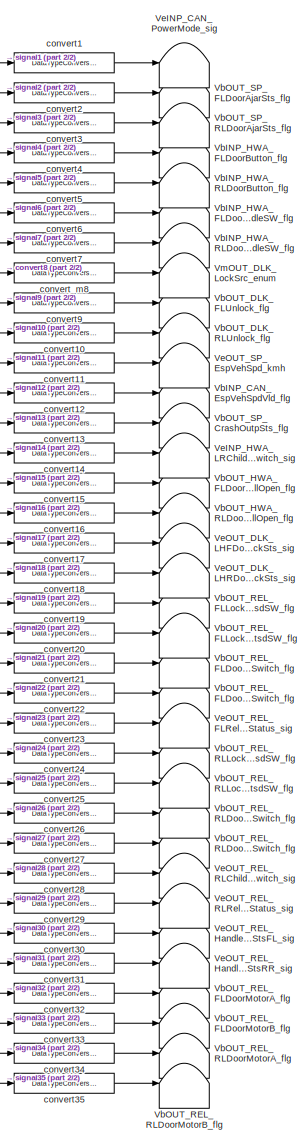
[diagram: root canvas - part 1/2, right side, full height]
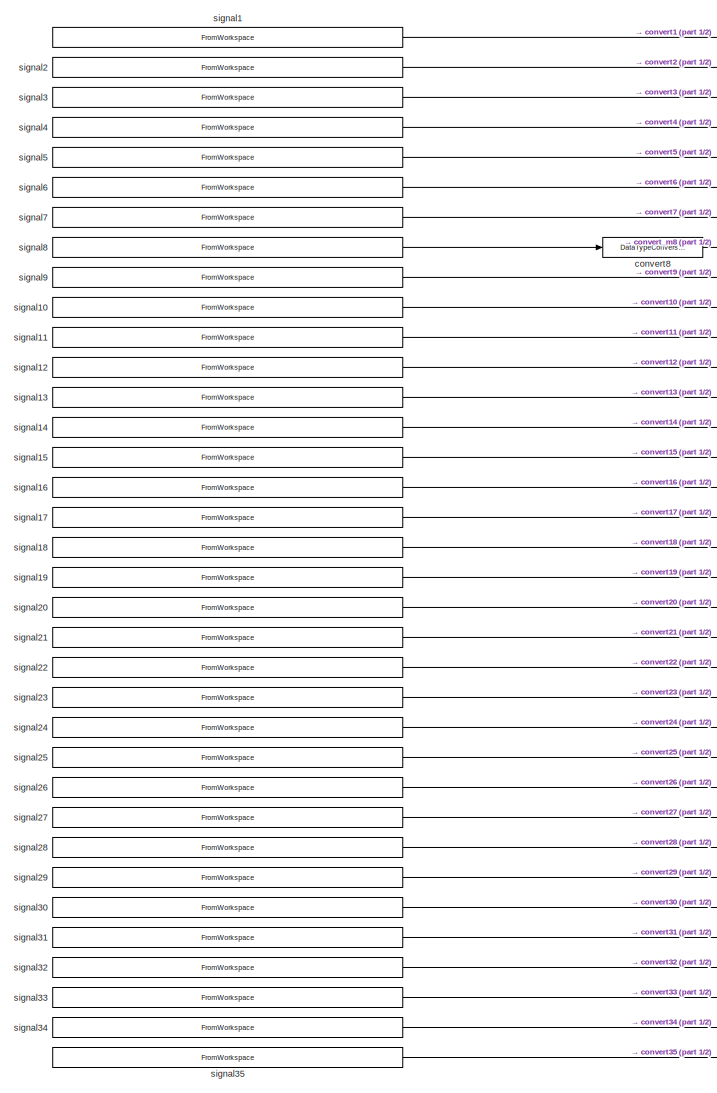
[diagram: root canvas - part 2/2, left side, full height]
MODEL slx_5ed63bcb32f9
KIND model
CONFIG AbsTol = auto
CONFIG EnableMultiTasking = off
CONFIG FixedStep = 0.01
CONFIG MaxStep = auto
CONFIG MinStep = auto
CONFIG RelTol = 1e-3
CONFIG SampleTimeConstraint = Unconstrained
CONFIG SolverName = FixedStepDiscrete
CONFIG StartTime = 0.0
CONFIG StopTime = 10.0
BLOCK [Terminator] VbINP_CAN_EspVehSpdVld_flg
BLOCK [Terminator] VbINP_HWA_FLDoorButton_flg
BLOCK [Terminator] VbINP_HWA_FLDoorHandleSW_flg
BLOCK [Terminator] VbINP_HWA_RLDoorButton_flg
BLOCK [Terminator] VbINP_HWA_RLDoorHandleSW_flg
BLOCK [Terminator] VbOUT_DLK_FLUnlock_flg
BLOCK [Terminator] VbOUT_DLK_RLUnlock_flg
BLOCK [Terminator] VbOUT_HWA_FLDoorFullOpen_flg
BLOCK [Terminator] VbOUT_HWA_RLDoorFullOpen_flg
BLOCK [Terminator] VbOUT_REL_FLDoorAjarSwitch_flg
BLOCK [Terminator] VbOUT_REL_FLDoorMotorA_flg
BLOCK [Terminator] VbOUT_REL_FLDoorMotorB_flg
BLOCK [Terminator] VbOUT_REL_FLDoorOpenSwitch_flg
BLOCK [Terminator] VbOUT_REL_FLLockReleaseInsdSW_flg
BLOCK [Terminator] VbOUT_REL_FLLockReleaseOutsdSW_flg
BLOCK [Terminator] VbOUT_REL_RLDoorAjarSwitch_flg
BLOCK [Terminator] VbOUT_REL_RLDoorMotorA_flg
BLOCK [Terminator] VbOUT_REL_RLDoorMotorB_flg
BLOCK [Terminator] VbOUT_REL_RLDoorOpenSwitch_flg
BLOCK [Terminator] VbOUT_REL_RLLockReleaseInsdSW_flg
BLOCK [Terminator] VbOUT_REL_RLLockReleaseOutsdSW_flg
BLOCK [Terminator] VbOUT_SP_CrashOutpSts_flg
BLOCK [Terminator] VbOUT_SP_FLDoorAjarSts_flg
BLOCK [Terminator] VbOUT_SP_RLDoorAjarSts_flg
BLOCK [Terminator] VeINP_CAN_PowerMode_sig
BLOCK [Terminator] VeINP_HWA_LRChildrenProtectSwitch_sig
BLOCK [Terminator] VeOUT_DLK_LHFDoorLockSts_sig
BLOCK [Terminator] VeOUT_DLK_LHRDoorLockSts_sig
BLOCK [Terminator] VeOUT_REL_FLReleaseLatchStatus_sig
BLOCK [Terminator] VeOUT_REL_HandleSwitchStsFL_sig
BLOCK [Terminator] VeOUT_REL_HandleSwitchStsRR_sig
BLOCK [Terminator] VeOUT_REL_RLChildrenProtectSwitch_sig
BLOCK [Terminator] VeOUT_REL_RLReleaseLatchStatus_sig
BLOCK [Terminator] VeOUT_SP_EspVehSpd_kmh
BLOCK [Terminator] VmOUT_DLK_LockSrc_enum
BLOCK [DataTypeConversion] convert1
  OutDataTypeStr = uint8
  RndMeth = Floor
  SaturateOnIntegerOverflow = off
BLOCK [DataTypeConversion] convert10
  OutDataTypeStr = boolean
  RndMeth = Floor
  SaturateOnIntegerOverflow = off
BLOCK [DataTypeConversion] convert11
  OutDataTypeStr = uint8
  RndMeth = Floor
  SaturateOnIntegerOverflow = off
BLOCK [DataTypeConversion] convert12
  OutDataTypeStr = boolean
  RndMeth = Floor
  SaturateOnIntegerOverflow = off
BLOCK [DataTypeConversion] convert13
  OutDataTypeStr = boolean
  RndMeth = Floor
  SaturateOnIntegerOverflow = off
BLOCK [DataTypeConversion] convert14
  OutDataTypeStr = uint8
  RndMeth = Floor
  SaturateOnIntegerOverflow = off
BLOCK [DataTypeConversion] convert15
  OutDataTypeStr = boolean
  RndMeth = Floor
  SaturateOnIntegerOverflow = off
BLOCK [DataTypeConversion] convert16
  OutDataTypeStr = boolean
  RndMeth = Floor
  SaturateOnIntegerOverflow = off
BLOCK [DataTypeConversion] convert17
  OutDataTypeStr = uint8
  RndMeth = Floor
  SaturateOnIntegerOverflow = off
BLOCK [DataTypeConversion] convert18
  OutDataTypeStr = uint8
  RndMeth = Floor
  SaturateOnIntegerOverflow = off
BLOCK [DataTypeConversion] convert19
  OutDataTypeStr = boolean
  RndMeth = Floor
  SaturateOnIntegerOverflow = off
BLOCK [DataTypeConversion] convert2
  OutDataTypeStr = boolean
  RndMeth = Floor
  SaturateOnIntegerOverflow = off
BLOCK [DataTypeConversion] convert20
  OutDataTypeStr = boolean
  RndMeth = Floor
  SaturateOnIntegerOverflow = off
BLOCK [DataTypeConversion] convert21
  OutDataTypeStr = boolean
  RndMeth = Floor
  SaturateOnIntegerOverflow = off
BLOCK [DataTypeConversion] convert22
  OutDataTypeStr = boolean
  RndMeth = Floor
  SaturateOnIntegerOverflow = off
BLOCK [DataTypeConversion] convert23
  OutDataTypeStr = uint8
  RndMeth = Floor
  SaturateOnIntegerOverflow = off
BLOCK [DataTypeConversion] convert24
  OutDataTypeStr = boolean
  RndMeth = Floor
  SaturateOnIntegerOverflow = off
BLOCK [DataTypeConversion] convert25
  OutDataTypeStr = boolean
  RndMeth = Floor
  SaturateOnIntegerOverflow = off
BLOCK [DataTypeConversion] convert26
  OutDataTypeStr = boolean
  RndMeth = Floor
  SaturateOnIntegerOverflow = off
BLOCK [DataTypeConversion] convert27
  OutDataTypeStr = boolean
  RndMeth = Floor
  SaturateOnIntegerOverflow = off
BLOCK [DataTypeConversion] convert28
  OutDataTypeStr = uint8
  RndMeth = Floor
  SaturateOnIntegerOverflow = off
BLOCK [DataTypeConversion] convert29
  OutDataTypeStr = uint8
  RndMeth = Floor
  SaturateOnIntegerOverflow = off
BLOCK [DataTypeConversion] convert3
  OutDataTypeStr = boolean
  RndMeth = Floor
  SaturateOnIntegerOverflow = off
BLOCK [DataTypeConversion] convert30
  OutDataTypeStr = uint8
  RndMeth = Floor
  SaturateOnIntegerOverflow = off
BLOCK [DataTypeConversion] convert31
  OutDataTypeStr = uint8
  RndMeth = Floor
  SaturateOnIntegerOverflow = off
BLOCK [DataTypeConversion] convert32
  OutDataTypeStr = boolean
  RndMeth = Floor
  SaturateOnIntegerOverflow = off
BLOCK [DataTypeConversion] convert33
  OutDataTypeStr = boolean
  RndMeth = Floor
  SaturateOnIntegerOverflow = off
BLOCK [DataTypeConversion] convert34
  OutDataTypeStr = boolean
  RndMeth = Floor
  SaturateOnIntegerOverflow = off
BLOCK [DataTypeConversion] convert35
  OutDataTypeStr = boolean
  RndMeth = Floor
  SaturateOnIntegerOverflow = off
BLOCK [DataTypeConversion] convert4
  OutDataTypeStr = boolean
  RndMeth = Floor
  SaturateOnIntegerOverflow = off
BLOCK [DataTypeConversion] convert5
  OutDataTypeStr = boolean
  RndMeth = Floor
  SaturateOnIntegerOverflow = off
BLOCK [DataTypeConversion] convert6
  OutDataTypeStr = boolean
  RndMeth = Floor
  SaturateOnIntegerOverflow = off
BLOCK [DataTypeConversion] convert7
  OutDataTypeStr = boolean
  RndMeth = Floor
  SaturateOnIntegerOverflow = off
BLOCK [DataTypeConversion] convert8
  OutDataTypeStr = uint8
  RndMeth = Floor
  SaturateOnIntegerOverflow = off
BLOCK [DataTypeConversion] convert9
  OutDataTypeStr = boolean
  RndMeth = Floor
  SaturateOnIntegerOverflow = off
BLOCK [DataTypeConversion] convert_m8
  RndMeth = Floor
  SaturateOnIntegerOverflow = off
BLOCK [FromWorkspace] signal1
  Interpolate = off
  OutputAfterFinalValue = Holding final value
  SampleTime = -1
  VariableName = VeINP_CAN_PowerMode_sig
BLOCK [FromWorkspace] signal10
  Interpolate = off
  OutputAfterFinalValue = Holding final value
  SampleTime = -1
  VariableName = VbOUT_DLK_RLUnlock_flg
BLOCK [FromWorkspace] signal11
  Interpolate = off
  OutputAfterFinalValue = Holding final value
  SampleTime = -1
  VariableName = VeOUT_SP_EspVehSpd_kmh
BLOCK [FromWorkspace] signal12
  Interpolate = off
  OutputAfterFinalValue = Holding final value
  SampleTime = -1
  VariableName = VbINP_CAN_EspVehSpdVld_flg
BLOCK [FromWorkspace] signal13
  Interpolate = off
  OutputAfterFinalValue = Holding final value
  SampleTime = -1
  VariableName = VbOUT_SP_CrashOutpSts_flg
BLOCK [FromWorkspace] signal14
  Interpolate = off
  OutputAfterFinalValue = Holding final value
  SampleTime = -1
  VariableName = VeINP_HWA_LRChildrenProtectSwitch_sig
BLOCK [FromWorkspace] signal15
  Interpolate = off
  OutputAfterFinalValue = Holding final value
  SampleTime = -1
  VariableName = VbOUT_HWA_FLDoorFullOpen_flg
BLOCK [FromWorkspace] signal16
  Interpolate = off
  OutputAfterFinalValue = Holding final value
  SampleTime = -1
  VariableName = VbOUT_HWA_RLDoorFullOpen_flg
BLOCK [FromWorkspace] signal17
  Interpolate = off
  OutputAfterFinalValue = Holding final value
  SampleTime = -1
  VariableName = VeOUT_DLK_LHFDoorLockSts_sig
BLOCK [FromWorkspace] signal18
  Interpolate = off
  OutputAfterFinalValue = Holding final value
  SampleTime = -1
  VariableName = VeOUT_DLK_LHRDoorLockSts_sig
BLOCK [FromWorkspace] signal19
  Interpolate = off
  OutputAfterFinalValue = Holding final value
  SampleTime = -1
  VariableName = VbOUT_REL_FLLockReleaseInsdSW_flg
BLOCK [FromWorkspace] signal2
  Interpolate = off
  OutputAfterFinalValue = Holding final value
  SampleTime = -1
  VariableName = VbOUT_SP_FLDoorAjarSts_flg
BLOCK [FromWorkspace] signal20
  Interpolate = off
  OutputAfterFinalValue = Holding final value
  SampleTime = -1
  VariableName = VbOUT_REL_FLLockReleaseOutsdSW_flg
BLOCK [FromWorkspace] signal21
  Interpolate = off
  OutputAfterFinalValue = Holding final value
  SampleTime = -1
  VariableName = VbOUT_REL_FLDoorOpenSwitch_flg
BLOCK [FromWorkspace] signal22
  Interpolate = off
  OutputAfterFinalValue = Holding final value
  SampleTime = -1
  VariableName = VbOUT_REL_FLDoorAjarSwitch_flg
BLOCK [FromWorkspace] signal23
  Interpolate = off
  OutputAfterFinalValue = Holding final value
  SampleTime = -1
  VariableName = VeOUT_REL_FLReleaseLatchStatus_sig
BLOCK [FromWorkspace] signal24
  Interpolate = off
  OutputAfterFinalValue = Holding final value
  SampleTime = -1
  VariableName = VbOUT_REL_RLLockReleaseInsdSW_flg
BLOCK [FromWorkspace] signal25
  Interpolate = off
  OutputAfterFinalValue = Holding final value
  SampleTime = -1
  VariableName = VbOUT_REL_RLLockReleaseOutsdSW_flg
BLOCK [FromWorkspace] signal26
  Interpolate = off
  OutputAfterFinalValue = Holding final value
  SampleTime = -1
  VariableName = VbOUT_REL_RLDoorOpenSwitch_flg
BLOCK [FromWorkspace] signal27
  Interpolate = off
  OutputAfterFinalValue = Holding final value
  SampleTime = -1
  VariableName = VbOUT_REL_RLDoorAjarSwitch_flg
BLOCK [FromWorkspace] signal28
  Interpolate = off
  OutputAfterFinalValue = Holding final value
  SampleTime = -1
  VariableName = VeOUT_REL_RLChildrenProtectSwitch_sig
BLOCK [FromWorkspace] signal29
  Interpolate = off
  OutputAfterFinalValue = Holding final value
  SampleTime = -1
  VariableName = VeOUT_REL_RLReleaseLatchStatus_sig
BLOCK [FromWorkspace] signal3
  Interpolate = off
  OutputAfterFinalValue = Holding final value
  SampleTime = -1
  VariableName = VbOUT_SP_RLDoorAjarSts_flg
BLOCK [FromWorkspace] signal30
  Interpolate = off
  OutputAfterFinalValue = Holding final value
  SampleTime = -1
  VariableName = VeOUT_REL_HandleSwitchStsFL_sig
BLOCK [FromWorkspace] signal31
  Interpolate = off
  OutputAfterFinalValue = Holding final value
  SampleTime = -1
  VariableName = VeOUT_REL_HandleSwitchStsRR_sig
BLOCK [FromWorkspace] signal32
  Interpolate = off
  OutputAfterFinalValue = Holding final value
  SampleTime = -1
  VariableName = VbOUT_REL_FLDoorMotorA_flg
BLOCK [FromWorkspace] signal33
  Interpolate = off
  OutputAfterFinalValue = Holding final value
  SampleTime = -1
  VariableName = VbOUT_REL_FLDoorMotorB_flg
BLOCK [FromWorkspace] signal34
  Interpolate = off
  OutputAfterFinalValue = Holding final value
  SampleTime = -1
  VariableName = VbOUT_REL_RLDoorMotorA_flg
BLOCK [FromWorkspace] signal35
  Interpolate = off
  OutputAfterFinalValue = Holding final value
  SampleTime = -1
  VariableName = VbOUT_REL_RLDoorMotorB_flg
BLOCK [FromWorkspace] signal4
  Interpolate = off
  OutputAfterFinalValue = Holding final value
  SampleTime = -1
  VariableName = VbINP_HWA_FLDoorButton_flg
BLOCK [FromWorkspace] signal5
  Interpolate = off
  OutputAfterFinalValue = Holding final value
  SampleTime = -1
  VariableName = VbINP_HWA_RLDoorButton_flg
BLOCK [FromWorkspace] signal6
  Interpolate = off
  OutputAfterFinalValue = Holding final value
  SampleTime = -1
  VariableName = VbINP_HWA_FLDoorHandleSW_flg
BLOCK [FromWorkspace] signal7
  Interpolate = off
  OutputAfterFinalValue = Holding final value
  SampleTime = -1
  VariableName = VbINP_HWA_RLDoorHandleSW_flg
BLOCK [FromWorkspace] signal8
  Interpolate = off
  OutputAfterFinalValue = Holding final value
  SampleTime = -1
  VariableName = VmOUT_DLK_LockSrc_enum
BLOCK [FromWorkspace] signal9
  Interpolate = off
  OutputAfterFinalValue = Holding final value
  SampleTime = -1
  VariableName = VbOUT_DLK_FLUnlock_flg
LINE convert10:1 -> VbOUT_DLK_RLUnlock_flg:1
LINE convert11:1 -> VeOUT_SP_EspVehSpd_kmh:1
LINE convert12:1 -> VbINP_CAN_EspVehSpdVld_flg:1
LINE convert13:1 -> VbOUT_SP_CrashOutpSts_flg:1
LINE convert14:1 -> VeINP_HWA_LRChildrenProtectSwitch_sig:1
LINE convert15:1 -> VbOUT_HWA_FLDoorFullOpen_flg:1
LINE convert16:1 -> VbOUT_HWA_RLDoorFullOpen_flg:1
LINE convert17:1 -> VeOUT_DLK_LHFDoorLockSts_sig:1
LINE convert18:1 -> VeOUT_DLK_LHRDoorLockSts_sig:1
LINE convert19:1 -> VbOUT_REL_FLLockReleaseInsdSW_flg:1
LINE convert1:1 -> VeINP_CAN_PowerMode_sig:1
LINE convert20:1 -> VbOUT_REL_FLLockReleaseOutsdSW_flg:1
LINE convert21:1 -> VbOUT_REL_FLDoorOpenSwitch_flg:1
LINE convert22:1 -> VbOUT_REL_FLDoorAjarSwitch_flg:1
LINE convert23:1 -> VeOUT_REL_FLReleaseLatchStatus_sig:1
LINE convert24:1 -> VbOUT_REL_RLLockReleaseInsdSW_flg:1
LINE convert25:1 -> VbOUT_REL_RLLockReleaseOutsdSW_flg:1
LINE convert26:1 -> VbOUT_REL_RLDoorOpenSwitch_flg:1
LINE convert27:1 -> VbOUT_REL_RLDoorAjarSwitch_flg:1
LINE convert28:1 -> VeOUT_REL_RLChildrenProtectSwitch_sig:1
LINE convert29:1 -> VeOUT_REL_RLReleaseLatchStatus_sig:1
LINE convert2:1 -> VbOUT_SP_FLDoorAjarSts_flg:1
LINE convert30:1 -> VeOUT_REL_HandleSwitchStsFL_sig:1
LINE convert31:1 -> VeOUT_REL_HandleSwitchStsRR_sig:1
LINE convert32:1 -> VbOUT_REL_FLDoorMotorA_flg:1
LINE convert33:1 -> VbOUT_REL_FLDoorMotorB_flg:1
LINE convert34:1 -> VbOUT_REL_RLDoorMotorA_flg:1
LINE convert35:1 -> VbOUT_REL_RLDoorMotorB_flg:1
LINE convert3:1 -> VbOUT_SP_RLDoorAjarSts_flg:1
LINE convert4:1 -> VbINP_HWA_FLDoorButton_flg:1
LINE convert5:1 -> VbINP_HWA_RLDoorButton_flg:1
LINE convert6:1 -> VbINP_HWA_FLDoorHandleSW_flg:1
LINE convert7:1 -> VbINP_HWA_RLDoorHandleSW_flg:1
LINE convert8:1 -> convert_m8:1
LINE convert9:1 -> VbOUT_DLK_FLUnlock_flg:1
LINE convert_m8:1 -> VmOUT_DLK_LockSrc_enum:1
LINE signal10:1 -> convert10:1
LINE signal11:1 -> convert11:1
LINE signal12:1 -> convert12:1
LINE signal13:1 -> convert13:1
LINE signal14:1 -> convert14:1
LINE signal15:1 -> convert15:1
LINE signal16:1 -> convert16:1
LINE signal17:1 -> convert17:1
LINE signal18:1 -> convert18:1
LINE signal19:1 -> convert19:1
LINE signal1:1 -> convert1:1
LINE signal20:1 -> convert20:1
LINE signal21:1 -> convert21:1
LINE signal22:1 -> convert22:1
LINE signal23:1 -> convert23:1
LINE signal24:1 -> convert24:1
LINE signal25:1 -> convert25:1
LINE signal26:1 -> convert26:1
LINE signal27:1 -> convert27:1
LINE signal28:1 -> convert28:1
LINE signal29:1 -> convert29:1
LINE signal2:1 -> convert2:1
LINE signal30:1 -> convert30:1
LINE signal31:1 -> convert31:1
LINE signal32:1 -> convert32:1
LINE signal33:1 -> convert33:1
LINE signal34:1 -> convert34:1
LINE signal35:1 -> convert35:1
LINE signal3:1 -> convert3:1
LINE signal4:1 -> convert4:1
LINE signal5:1 -> convert5:1
LINE signal6:1 -> convert6:1
LINE signal7:1 -> convert7:1
LINE signal8:1 -> convert8:1
LINE signal9:1 -> convert9:1
